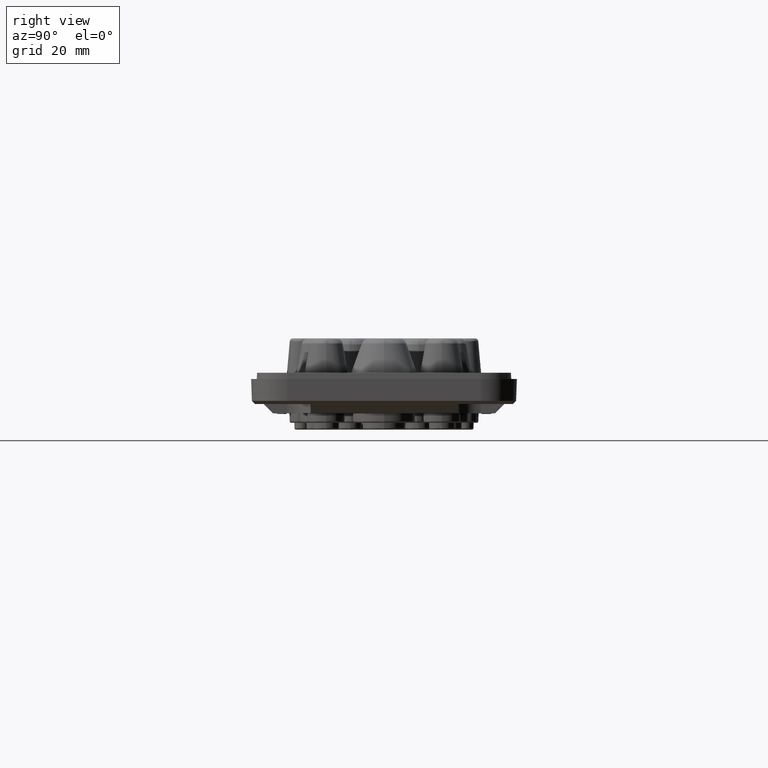
[diagram: clean part render]
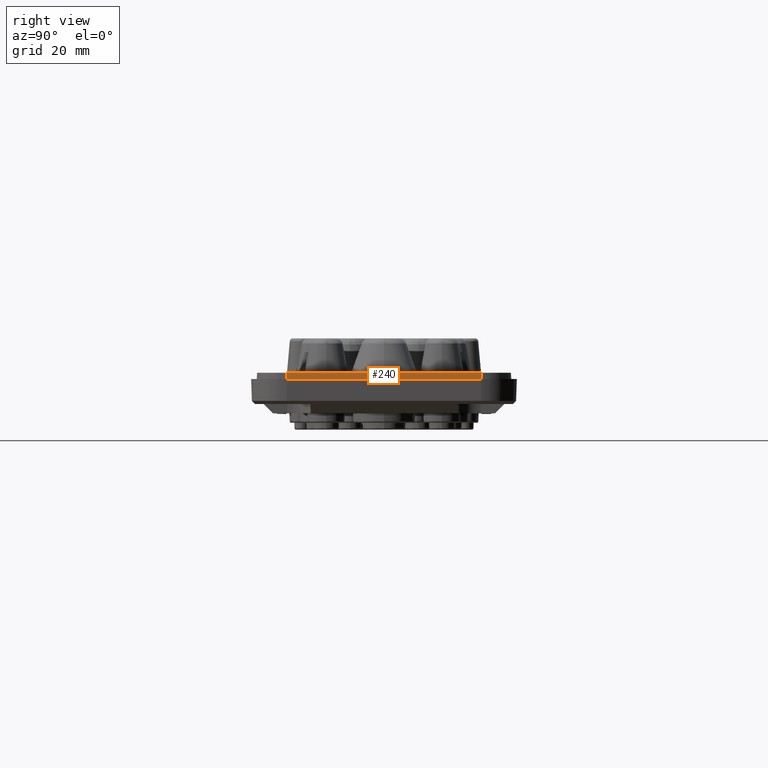
[diagram: same view with one face highlighted and labeled with its STEP entity id]
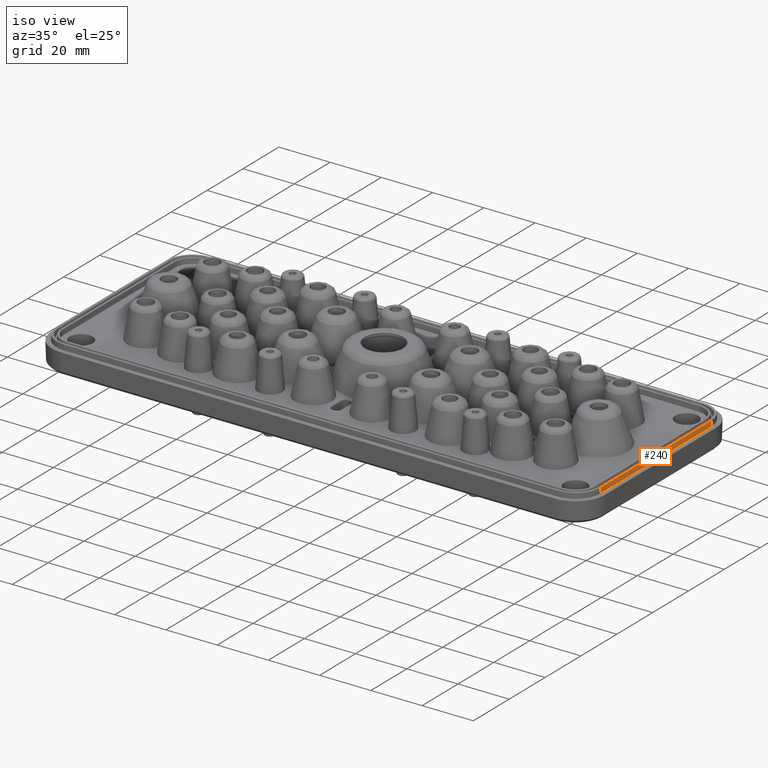
[diagram: same view with one face highlighted and labeled with its STEP entity id]
A machine part, right view. The second image highlights one B-rep face of the part: STEP entity #240.
A second angle (iso view) of the same face is appended — the face is thin or edge-on in the first view.
In plain terms, the highlighted planar face has unit normal (0.9986, 0, 0.0523).
Its self-contained STEP definition (entity closure, byte-faithful):
#240 = ADVANCED_FACE ( 'NONE', ( #50408 ), #34466, .T. ) ;
#1268 = CARTESIAN_POINT ( 'NONE',  ( 38.88648322367876600, -43.91030365296026600, -0.0000000000000000000 ) ) ;
#3667 = VECTOR ( 'NONE', #23863, 1000.000000000000000 ) ;
#6554 = DIRECTION ( 'NONE',  ( 0.05233595624294658200, 0.0000000000000000000, -0.9986295347545737200 ) ) ;
#6646 = LINE ( 'NONE', #45731, #14602 ) ;
#6742 = CARTESIAN_POINT ( 'NONE',  ( 38.88648322367875200, -28.41030365296027700, -0.0000000000000000000 ) ) ;
#8827 = ORIENTED_EDGE ( 'NONE', *, *, #35822, .F. ) ;
#9593 = EDGE_CURVE ( 'NONE', #55770, #29086, #28817, .T. ) ;
#11095 = CARTESIAN_POINT ( 'NONE',  ( 38.88648322367875200, -28.41030365296027700, -0.0000000000000000000 ) ) ;
#11847 = CARTESIAN_POINT ( 'NONE',  ( 38.88648322367875200, -28.41030365296027700, -0.0000000000000000000 ) ) ;
#11857 = VECTOR ( 'NONE', #56964, 1000.000000000000000 ) ;
#13484 = DIRECTION ( 'NONE',  ( -0.05233595624293951200, 0.0000000000000000000, 0.9986295347545741700 ) ) ;
#14602 = VECTOR ( 'NONE', #13484, 1000.000000000000000 ) ;
#16502 = VECTOR ( 'NONE', #57715, 1000.000000000000200 ) ;
#16777 = EDGE_LOOP ( 'NONE', ( #23950, #8827, #49624, #19878 ) ) ;
#16797 = VERTEX_POINT ( 'NONE', #29637 ) ;
#17690 = LINE ( 'NONE', #1268, #11857 ) ;
#19878 = ORIENTED_EDGE ( 'NONE', *, *, #9593, .T. ) ;
#22808 = AXIS2_PLACEMENT_3D ( 'NONE', #6742, #52902, #6554 ) ;
#23863 = DIRECTION ( 'NONE',  ( 2.449212707644754500E-016, -1.000000000000000000, -0.0000000000000000000 ) ) ;
#23950 = ORIENTED_EDGE ( 'NONE', *, *, #42901, .T. ) ;
#25332 = LINE ( 'NONE', #46771, #3667 ) ;
#26037 = EDGE_CURVE ( 'NONE', #55770, #38080, #17690, .T. ) ;
#28817 = LINE ( 'NONE', #11095, #16502 ) ;
#29086 = VERTEX_POINT ( 'NONE', #30924 ) ;
#29637 = CARTESIAN_POINT ( 'NONE',  ( 38.78166766511269300, -90.41030365296026600, 2.000000000000000000 ) ) ;
#30924 = CARTESIAN_POINT ( 'NONE',  ( 38.78166766511266400, -28.41030365296027700, 2.000000000000000000 ) ) ;
#34466 = PLANE ( 'NONE',  #22808 ) ;
#35822 = EDGE_CURVE ( 'NONE', #38080, #16797, #6646, .T. ) ;
#38080 = VERTEX_POINT ( 'NONE', #44100 ) ;
#42901 = EDGE_CURVE ( 'NONE', #29086, #16797, #25332, .T. ) ;
#44100 = CARTESIAN_POINT ( 'NONE',  ( 38.88648322367876600, -90.41030365296026600, -0.0000000000000000000 ) ) ;
#45731 = CARTESIAN_POINT ( 'NONE',  ( 38.88648322367876600, -90.41030365296026600, -0.0000000000000000000 ) ) ;
#46771 = CARTESIAN_POINT ( 'NONE',  ( 38.78166766511267800, -64.58139921140396200, 2.000000000000000000 ) ) ;
#49624 = ORIENTED_EDGE ( 'NONE', *, *, #26037, .F. ) ;
#50408 = FACE_OUTER_BOUND ( 'NONE', #16777, .T. ) ;
#52902 = DIRECTION ( 'NONE',  ( 0.9986295347545738300, 2.445856146750271200E-016, 0.05233595624294658900 ) ) ;
#55770 = VERTEX_POINT ( 'NONE', #11847 ) ;
#56964 = DIRECTION ( 'NONE',  ( 2.449212707644755000E-016, -1.000000000000000000, -0.0000000000000000000 ) ) ;
#57715 = DIRECTION ( 'NONE',  ( -0.05233595624294658900, 0.0000000000000000000, 0.9986295347545737200 ) ) ;